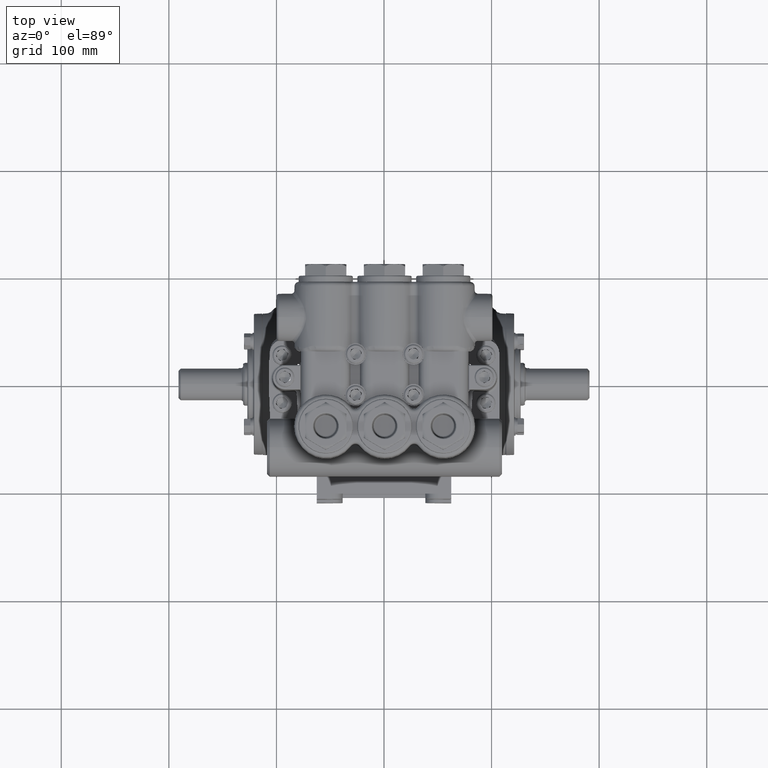
[diagram: clean part render]
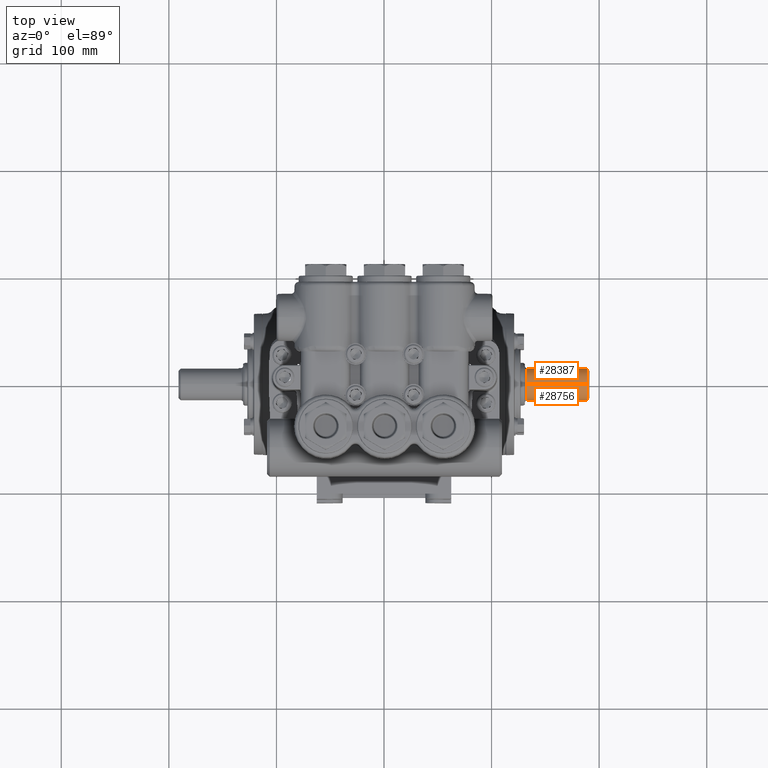
[diagram: same view with one multi-face feature highlighted, each face labeled with its STEP entity id]
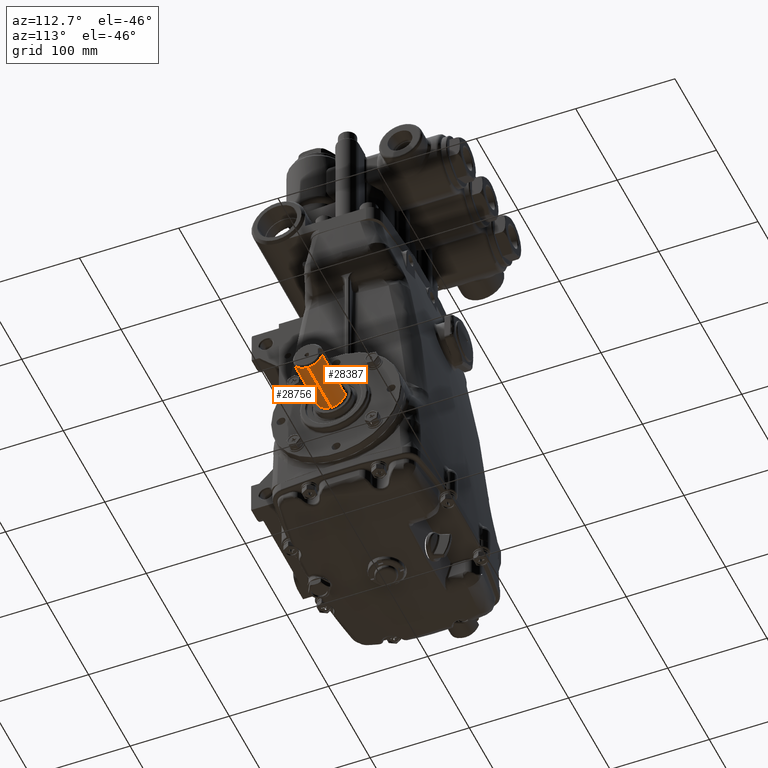
[diagram: same view with one multi-face feature highlighted, each face labeled with its STEP entity id]
A machine part, top view. The highlighted faces form ONE feature: a constant-radius fillet chain: 2 tangent blend faces with common blend radius 15 mm. The faces share edges in the B-rep.
A second angle (auxiliary view) of the same feature is appended — it is thin or edge-on in the first view.
Their STEP definitions:
[1] entity #28756 (Cylinder):
#1271 = DIRECTION ( 'NONE',  ( 0.000000000000000000, 0.000000000000000000, -1.000000000000000000 ) ) ;
#1385 = AXIS2_PLACEMENT_3D ( 'NONE', #68910, #60592, #91016 ) ;
#3788 = CARTESIAN_POINT ( 'NONE',  ( 7.440944881889764773, 0.000000000000000000, 0.5905511811023621549 ) ) ;
#3857 = CYLINDRICAL_SURFACE ( 'NONE', #90953, 0.5905511811023621549 ) ;
#6089 = VERTEX_POINT ( 'NONE', #3788 ) ;
#6102 = CIRCLE ( 'NONE', #1385, 0.5905511811023621549 ) ;
#8172 = DIRECTION ( 'NONE',  ( 1.000000000000000000, 0.000000000000000000, 0.000000000000000000 ) ) ;
#15692 = CARTESIAN_POINT ( 'NONE',  ( 5.236220472440945350, 0.000000000000000000, -0.5905511811023621549 ) ) ;
#19090 = ORIENTED_EDGE ( 'NONE', *, *, #65865, .F. ) ;
#20074 = DIRECTION ( 'NONE',  ( -1.000000000000000000, -0.000000000000000000, -0.000000000000000000 ) ) ;
#20202 = CARTESIAN_POINT ( 'NONE',  ( 7.519685039370078705, 7.232166136696967594E-17, -0.5905511811023621549 ) ) ;
#28756 = ADVANCED_FACE ( 'NONE', ( #86872 ), #3857, .T. ) ;
#29448 = AXIS2_PLACEMENT_3D ( 'NONE', #44989, #8172, #1271 ) ;
#32392 = EDGE_CURVE ( 'NONE', #6089, #89539, #76168, .T. ) ;
#33828 = DIRECTION ( 'NONE',  ( 0.000000000000000000, 0.000000000000000000, 1.000000000000000000 ) ) ;
#35778 = CIRCLE ( 'NONE', #29448, 0.5905511811023621549 ) ;
#36633 = ORIENTED_EDGE ( 'NONE', *, *, #32392, .T. ) ;
#38830 = VERTEX_POINT ( 'NONE', #70053 ) ;
#44989 = CARTESIAN_POINT ( 'NONE',  ( 5.236220472440945350, 0.000000000000000000, 0.000000000000000000 ) ) ;
#51374 = CARTESIAN_POINT ( 'NONE',  ( 5.236220472440945350, 7.714310545810099671E-17, 0.5905511811023621549 ) ) ;
#55415 = EDGE_CURVE ( 'NONE', #89539, #64689, #35778, .T. ) ;
#60592 = DIRECTION ( 'NONE',  ( -1.000000000000000000, 0.000000000000000000, 0.000000000000000000 ) ) ;
#64689 = VERTEX_POINT ( 'NONE', #15692 ) ;
#65865 = EDGE_CURVE ( 'NONE', #38830, #64689, #95804, .T. ) ;
#68910 = CARTESIAN_POINT ( 'NONE',  ( 7.440944881889764773, 0.000000000000000000, 0.000000000000000000 ) ) ;
#69168 = VECTOR ( 'NONE', #90411, 39.37007874015748143 ) ;
#69742 = CARTESIAN_POINT ( 'NONE',  ( 7.519685039370078705, 0.000000000000000000, 0.5905511811023621549 ) ) ;
#70053 = CARTESIAN_POINT ( 'NONE',  ( 7.440944881889764773, 7.232166136696968827E-17, -0.5905511811023621549 ) ) ;
#71408 = ORIENTED_EDGE ( 'NONE', *, *, #55415, .T. ) ;
#76168 = LINE ( 'NONE', #69742, #69168 ) ;
#78653 = DIRECTION ( 'NONE',  ( -1.000000000000000000, -0.000000000000000000, -0.000000000000000000 ) ) ;
#81587 = EDGE_LOOP ( 'NONE', ( #19090, #96506, #36633, #71408 ) ) ;
#86872 = FACE_OUTER_BOUND ( 'NONE', #81587, .T. ) ;
#87363 = CARTESIAN_POINT ( 'NONE',  ( 7.519685039370078705, 0.000000000000000000, 0.000000000000000000 ) ) ;
#89539 = VERTEX_POINT ( 'NONE', #51374 ) ;
#89884 = VECTOR ( 'NONE', #78653, 39.37007874015748143 ) ;
#90411 = DIRECTION ( 'NONE',  ( -1.000000000000000000, -0.000000000000000000, -0.000000000000000000 ) ) ;
#90435 = EDGE_CURVE ( 'NONE', #38830, #6089, #6102, .T. ) ;
#90953 = AXIS2_PLACEMENT_3D ( 'NONE', #87363, #20074, #33828 ) ;
#91016 = DIRECTION ( 'NONE',  ( 0.000000000000000000, 0.000000000000000000, -1.000000000000000000 ) ) ;
#95804 = LINE ( 'NONE', #20202, #89884 ) ;
#96506 = ORIENTED_EDGE ( 'NONE', *, *, #90435, .T. ) ;
[2] entity #28387 (Cylinder):
#740 = ORIENTED_EDGE ( 'NONE', *, *, #44028, .F. ) ;
#2173 = B_SPLINE_CURVE_WITH_KNOTS ( 'NONE', 3,
 ( #56051, #79632, #12336, #25127, #11848, #47691, #63906, #92894, #70286, #70788, #86013, #49166 ),
 .UNSPECIFIED., .F., .F.,
 ( 4, 2, 2, 2, 2, 4 ),
 ( 0.000000000000000000, 0.002036340939389371177, 0.003054511409084056765, 0.004072681878778742354, 0.006109022818168113531, 0.008145363757557484707 ),
 .UNSPECIFIED. ) ;
#3788 = CARTESIAN_POINT ( 'NONE',  ( 7.440944881889764773, 0.000000000000000000, 0.5905511811023621549 ) ) ;
#5082 = CIRCLE ( 'NONE', #85081, 0.5905511811023621549 ) ;
#5442 = DIRECTION ( 'NONE',  ( 0.000000000000000000, 0.000000000000000000, 1.000000000000000000 ) ) ;
#6089 = VERTEX_POINT ( 'NONE', #3788 ) ;
#6716 = VERTEX_POINT ( 'NONE', #36561 ) ;
#10915 = AXIS2_PLACEMENT_3D ( 'NONE', #58762, #15048, #82798 ) ;
#11834 = CYLINDRICAL_SURFACE ( 'NONE', #26107, 0.5905511811023621549 ) ;
#11848 = CARTESIAN_POINT ( 'NONE',  ( 5.310614844261059453, 0.5882387730888949395, 0.05390770138804390488 ) ) ;
#12336 = CARTESIAN_POINT ( 'NONE',  ( 5.317070669648812142, 0.5814622795987760551, 0.1065594929779126038 ) ) ;
#15048 = DIRECTION ( 'NONE',  ( 1.000000000000000000, 0.000000000000000000, 0.000000000000000000 ) ) ;
#15692 = CARTESIAN_POINT ( 'NONE',  ( 5.236220472440945350, 0.000000000000000000, -0.5905511811023621549 ) ) ;
#15788 = EDGE_CURVE ( 'NONE', #64689, #89539, #76851, .T. ) ;
#16352 = EDGE_LOOP ( 'NONE', ( #33958, #86473, #68523, #42187, #69774, #740, #72893, #80860 ) ) ;
#20202 = CARTESIAN_POINT ( 'NONE',  ( 7.519685039370078705, 7.232166136696967594E-17, -0.5905511811023621549 ) ) ;
#20854 = VECTOR ( 'NONE', #54584, 39.37007874015748143 ) ;
#24164 = LINE ( 'NONE', #70786, #20854 ) ;
#25127 = CARTESIAN_POINT ( 'NONE',  ( 5.311900535346278041, 0.5868685841492667921, 0.06716855737367070922 ) ) ;
#26107 = AXIS2_PLACEMENT_3D ( 'NONE', #28044, #80105, #5442 ) ;
#28044 = CARTESIAN_POINT ( 'NONE',  ( 7.519685039370078705, 0.000000000000000000, 0.000000000000000000 ) ) ;
#28387 = ADVANCED_FACE ( 'NONE', ( #50128 ), #11834, .T. ) ;
#32392 = EDGE_CURVE ( 'NONE', #6089, #89539, #76168, .T. ) ;
#33958 = ORIENTED_EDGE ( 'NONE', *, *, #41621, .T. ) ;
#34163 = VERTEX_POINT ( 'NONE', #94700 ) ;
#35109 = DIRECTION ( 'NONE',  ( 0.000000000000000000, -8.881784197001252323E-16, -1.000000000000000000 ) ) ;
#35581 = CARTESIAN_POINT ( 'NONE',  ( 7.440944881889764773, 0.000000000000000000, 0.000000000000000000 ) ) ;
#36561 = CARTESIAN_POINT ( 'NONE',  ( 7.440944881889764773, 0.5691666257795653383, 0.1574803149606299191 ) ) ;
#38830 = VERTEX_POINT ( 'NONE', #70053 ) ;
#41621 = EDGE_CURVE ( 'NONE', #57456, #38830, #5082, .T. ) ;
#42187 = ORIENTED_EDGE ( 'NONE', *, *, #32392, .F. ) ;
#42437 = DIRECTION ( 'NONE',  ( -1.000000000000000000, 0.000000000000000000, 0.000000000000000000 ) ) ;
#44028 = EDGE_CURVE ( 'NONE', #63932, #6716, #96585, .T. ) ;
#47691 = CARTESIAN_POINT ( 'NONE',  ( 5.308893326024628045, 0.5900806824996333022, 0.02712346907823406580 ) ) ;
#47866 = CARTESIAN_POINT ( 'NONE',  ( 5.329540748388668980, 0.5691666257795653383, 0.1574803149606299191 ) ) ;
#49166 = CARTESIAN_POINT ( 'NONE',  ( 5.329540748388668980, 0.5691666257795653383, -0.1574803149606299191 ) ) ;
#50128 = FACE_OUTER_BOUND ( 'NONE', #16352, .T. ) ;
#50943 = CARTESIAN_POINT ( 'NONE',  ( 7.519685039370078705, 0.5691666257795653383, 0.1574803149606299191 ) ) ;
#51374 = CARTESIAN_POINT ( 'NONE',  ( 5.236220472440945350, 7.714310545810099671E-17, 0.5905511811023621549 ) ) ;
#52928 = CARTESIAN_POINT ( 'NONE',  ( 7.440944881889764773, 0.000000000000000000, 0.000000000000000000 ) ) ;
#53723 = EDGE_CURVE ( 'NONE', #63932, #34163, #2173, .T. ) ;
#54584 = DIRECTION ( 'NONE',  ( 1.000000000000000000, 0.000000000000000000, 0.000000000000000000 ) ) ;
#56051 = CARTESIAN_POINT ( 'NONE',  ( 5.329540748388668980, 0.5691666257795653383, 0.1574803149606299191 ) ) ;
#57456 = VERTEX_POINT ( 'NONE', #86377 ) ;
#58762 = CARTESIAN_POINT ( 'NONE',  ( 5.236220472440945350, 0.000000000000000000, 0.000000000000000000 ) ) ;
#58793 = DIRECTION ( 'NONE',  ( 1.000000000000000000, 0.000000000000000000, 0.000000000000000000 ) ) ;
#60261 = VECTOR ( 'NONE', #58793, 39.37007874015748143 ) ;
#60271 = CIRCLE ( 'NONE', #68052, 0.5905511811023621549 ) ;
#60314 = DIRECTION ( 'NONE',  ( 0.000000000000000000, 0.000000000000000000, -1.000000000000000000 ) ) ;
#63906 = CARTESIAN_POINT ( 'NONE',  ( 5.308459948206758483, 0.5905497346146713067, 0.01353506077465520784 ) ) ;
#63932 = VERTEX_POINT ( 'NONE', #47866 ) ;
#64689 = VERTEX_POINT ( 'NONE', #15692 ) ;
#65766 = EDGE_CURVE ( 'NONE', #34163, #57456, #24164, .T. ) ;
#65865 = EDGE_CURVE ( 'NONE', #38830, #64689, #95804, .T. ) ;
#68052 = AXIS2_PLACEMENT_3D ( 'NONE', #52928, #83388, #60314 ) ;
#68523 = ORIENTED_EDGE ( 'NONE', *, *, #15788, .T. ) ;
#69168 = VECTOR ( 'NONE', #90411, 39.37007874015748143 ) ;
#69742 = CARTESIAN_POINT ( 'NONE',  ( 7.519685039370078705, 0.000000000000000000, 0.5905511811023621549 ) ) ;
#69774 = ORIENTED_EDGE ( 'NONE', *, *, #76438, .T. ) ;
#70053 = CARTESIAN_POINT ( 'NONE',  ( 7.440944881889764773, 7.232166136696968827E-17, -0.5905511811023621549 ) ) ;
#70286 = CARTESIAN_POINT ( 'NONE',  ( 5.310130001399021360, 0.5887213110048168385, -0.05351053968820804890 ) ) ;
#70786 = CARTESIAN_POINT ( 'NONE',  ( 7.519685039370078705, 0.5691666257795653383, -0.1574803149606299191 ) ) ;
#70788 = CARTESIAN_POINT ( 'NONE',  ( 5.316994430753753775, 0.5815407090710534854, -0.1061440699336981403 ) ) ;
#72893 = ORIENTED_EDGE ( 'NONE', *, *, #53723, .T. ) ;
#76168 = LINE ( 'NONE', #69742, #69168 ) ;
#76438 = EDGE_CURVE ( 'NONE', #6089, #6716, #60271, .T. ) ;
#76851 = CIRCLE ( 'NONE', #10915, 0.5905511811023621549 ) ;
#78653 = DIRECTION ( 'NONE',  ( -1.000000000000000000, -0.000000000000000000, -0.000000000000000000 ) ) ;
#79632 = CARTESIAN_POINT ( 'NONE',  ( 5.322240585442306937, 0.5761329856503506486, 0.1323024408713359690 ) ) ;
#80105 = DIRECTION ( 'NONE',  ( -1.000000000000000000, -0.000000000000000000, -0.000000000000000000 ) ) ;
#80860 = ORIENTED_EDGE ( 'NONE', *, *, #65766, .T. ) ;
#82798 = DIRECTION ( 'NONE',  ( 0.000000000000000000, 0.000000000000000000, -1.000000000000000000 ) ) ;
#83388 = DIRECTION ( 'NONE',  ( -1.000000000000000000, 0.000000000000000000, 0.000000000000000000 ) ) ;
#85081 = AXIS2_PLACEMENT_3D ( 'NONE', #35581, #42437, #35109 ) ;
#86013 = CARTESIAN_POINT ( 'NONE',  ( 5.322242503047340811, 0.5761311557286290519, -0.1323090545891973668 ) ) ;
#86377 = CARTESIAN_POINT ( 'NONE',  ( 7.440944881889764773, 0.5691666257795653383, -0.1574803149606299191 ) ) ;
#86473 = ORIENTED_EDGE ( 'NONE', *, *, #65865, .T. ) ;
#89539 = VERTEX_POINT ( 'NONE', #51374 ) ;
#89884 = VECTOR ( 'NONE', #78653, 39.37007874015748143 ) ;
#90411 = DIRECTION ( 'NONE',  ( -1.000000000000000000, -0.000000000000000000, -0.000000000000000000 ) ) ;
#92894 = CARTESIAN_POINT ( 'NONE',  ( 5.308455933102567137, 0.5905540639131500180, -0.02688034199945850758 ) ) ;
#94700 = CARTESIAN_POINT ( 'NONE',  ( 5.329540748388668980, 0.5691666257795653383, -0.1574803149606299191 ) ) ;
#95804 = LINE ( 'NONE', #20202, #89884 ) ;
#96585 = LINE ( 'NONE', #50943, #60261 ) ;